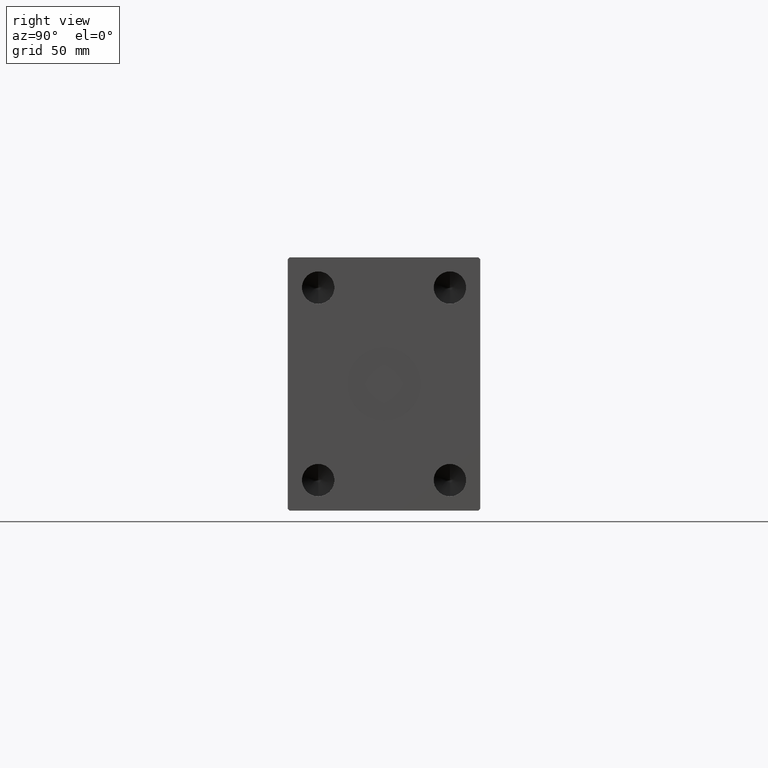
[diagram: clean part render]
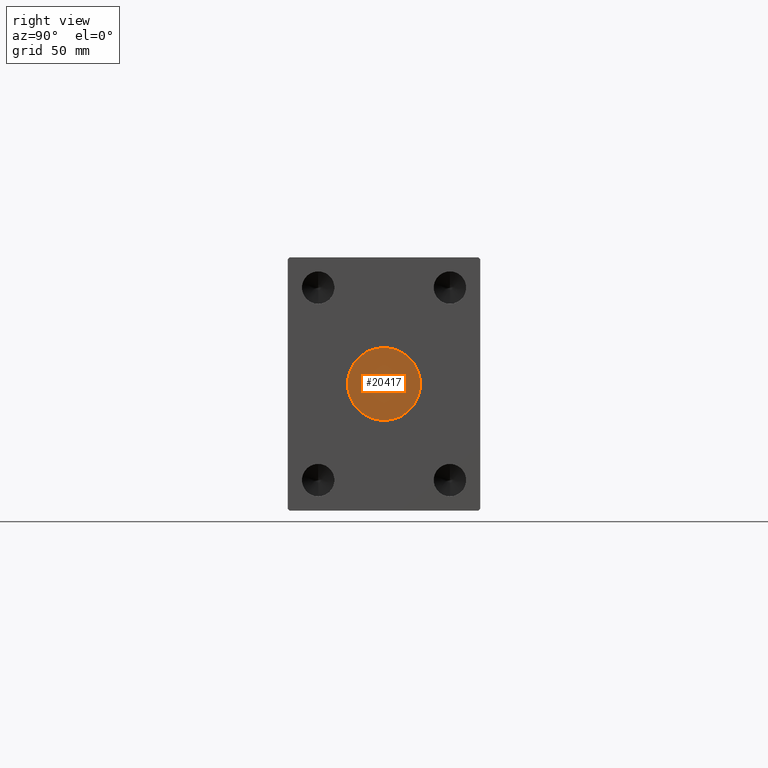
[diagram: same view with one face highlighted and labeled with its STEP entity id]
A machine part, right view. The second image highlights one B-rep face of the part: STEP entity #20417.
In plain terms, the highlighted planar face has unit normal (1, 0, 0).
Its self-contained STEP definition (entity closure, byte-faithful):
#753 = ORIENTED_EDGE ( 'NONE', *, *, #21458, .T. ) ;
#1665 = VERTEX_POINT ( 'NONE', #8199 ) ;
#2411 = CIRCLE ( 'NONE', #24441, 18.00000000000000000 ) ;
#2815 = PLANE ( 'NONE',  #29104 ) ;
#8199 = CARTESIAN_POINT ( 'NONE',  ( 310.8000000000000114, 0.000000000000000000, -18.00000000000000000 ) ) ;
#10762 = CARTESIAN_POINT ( 'NONE',  ( 310.8000000000000114, 0.000000000000000000, 0.000000000000000000 ) ) ;
#14926 = AXIS2_PLACEMENT_3D ( 'NONE', #10762, #20554, #34988 ) ;
#16365 = CARTESIAN_POINT ( 'NONE',  ( 310.8000000000000114, 0.000000000000000000, 0.000000000000000000 ) ) ;
#18902 = ORIENTED_EDGE ( 'NONE', *, *, #37775, .T. ) ;
#20417 = ADVANCED_FACE ( 'NONE', ( #23704 ), #2815, .T. ) ;
#20554 = DIRECTION ( 'NONE',  ( 1.000000000000000000, 0.000000000000000000, 0.000000000000000000 ) ) ;
#21458 = EDGE_CURVE ( 'NONE', #1665, #29165, #23455, .T. ) ;
#23139 = DIRECTION ( 'NONE',  ( 0.000000000000000000, 0.000000000000000000, -1.000000000000000000 ) ) ;
#23455 = CIRCLE ( 'NONE', #14926, 18.00000000000000000 ) ;
#23704 = FACE_OUTER_BOUND ( 'NONE', #24088, .T. ) ;
#24088 = EDGE_LOOP ( 'NONE', ( #753, #18902 ) ) ;
#24441 = AXIS2_PLACEMENT_3D ( 'NONE', #40499, #36703, #23139 ) ;
#28912 = CARTESIAN_POINT ( 'NONE',  ( 310.8000000000000114, 2.204364238465235428E-15, 18.00000000000000000 ) ) ;
#29104 = AXIS2_PLACEMENT_3D ( 'NONE', #16365, #29919, #43521 ) ;
#29165 = VERTEX_POINT ( 'NONE', #28912 ) ;
#29919 = DIRECTION ( 'NONE',  ( 1.000000000000000000, 0.000000000000000000, 0.000000000000000000 ) ) ;
#34988 = DIRECTION ( 'NONE',  ( 0.000000000000000000, 0.000000000000000000, -1.000000000000000000 ) ) ;
#36703 = DIRECTION ( 'NONE',  ( 1.000000000000000000, 0.000000000000000000, 0.000000000000000000 ) ) ;
#37775 = EDGE_CURVE ( 'NONE', #29165, #1665, #2411, .T. ) ;
#40499 = CARTESIAN_POINT ( 'NONE',  ( 310.8000000000000114, 0.000000000000000000, 0.000000000000000000 ) ) ;
#43521 = DIRECTION ( 'NONE',  ( 0.000000000000000000, 0.000000000000000000, -1.000000000000000000 ) ) ;